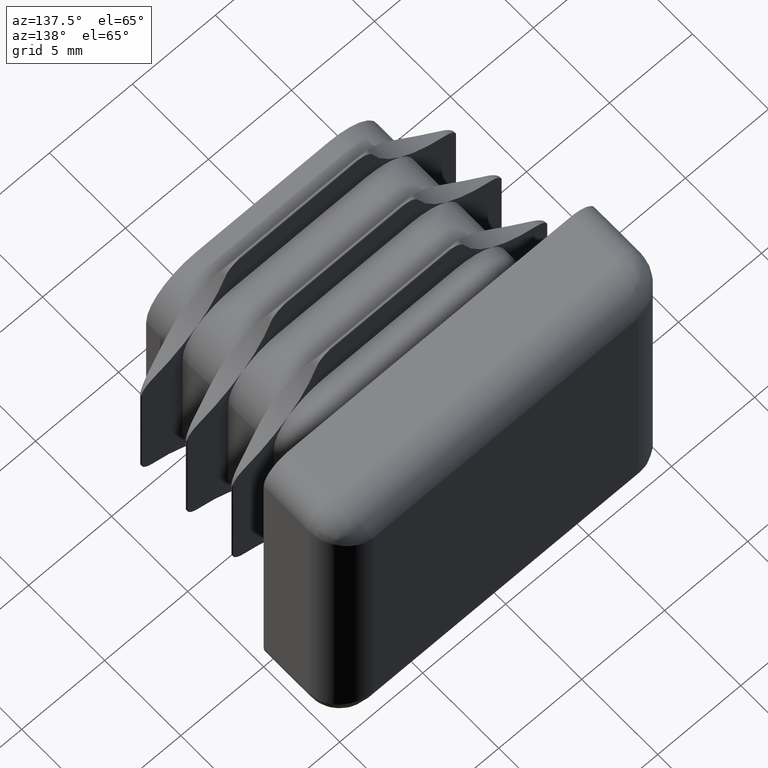
[diagram: clean part render]
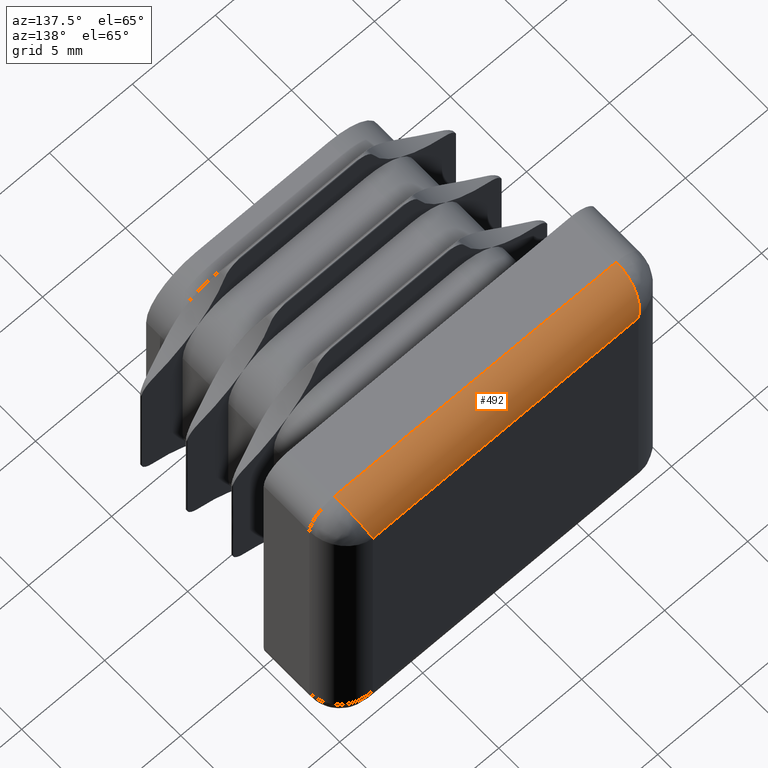
[diagram: same view with one face highlighted and labeled with its STEP entity id]
A machine part, auxiliary view. The second image highlights one B-rep face of the part: STEP entity #492.
In plain terms, the highlighted cylindrical surface (partial cylindrical patch) has radius 2 mm, axis along (-1, 0, 0).
Its self-contained STEP definition (entity closure, byte-faithful):
#492 = ADVANCED_FACE ( 'NONE', ( #2830 ), #593, .T. ) ;
#593 = CYLINDRICAL_SURFACE ( 'NONE', #14210, 2.000000000000000000 ) ;
#776 = ORIENTED_EDGE ( 'NONE', *, *, #14708, .T. ) ;
#827 = VECTOR ( 'NONE', #15170, 1000.000000000000000 ) ;
#2830 = FACE_OUTER_BOUND ( 'NONE', #6602, .T. ) ;
#4710 = CARTESIAN_POINT ( 'NONE',  ( 8.500000000000021316, 3.000000000000000000, 10.00000000000000888 ) ) ;
#4733 = EDGE_CURVE ( 'NONE', #7425, #16272, #10980, .T. ) ;
#5092 = CARTESIAN_POINT ( 'NONE',  ( 8.292893218813475187, 5.000000000000000888, 9.171572875253819035 ) ) ;
#6602 = EDGE_LOOP ( 'NONE', ( #776, #8712, #15617, #8612 ) ) ;
#6664 = CARTESIAN_POINT ( 'NONE',  ( 8.500000000000023093, 4.171572875253810153, 10.00000000000000888 ) ) ;
#6882 = EDGE_CURVE ( 'NONE', #16272, #17044, #16261, .T. ) ;
#7425 = VERTEX_POINT ( 'NONE', #12372 ) ;
#7678 = CARTESIAN_POINT ( 'NONE',  ( -8.292893218813446765, 5.000000000000000000, 9.171572875253819035 ) ) ;
#8250 = CARTESIAN_POINT ( 'NONE',  ( 8.500000000000021316, 3.000000000000000000, 10.00000000000000888 ) ) ;
#8612 = ORIENTED_EDGE ( 'NONE', *, *, #4733, .F. ) ;
#8712 = ORIENTED_EDGE ( 'NONE', *, *, #9503, .F. ) ;
#9111 = CARTESIAN_POINT ( 'NONE',  ( -8.499999999999994671, 3.000000000000000000, 10.00000000000000888 ) ) ;
#9503 = EDGE_CURVE ( 'NONE', #17044, #19511, #17144, .T. ) ;
#10980 = LINE ( 'NONE', #13511, #827 ) ;
#11719 = DIRECTION ( 'NONE',  ( 0.000000000000000000, 0.000000000000000000, 1.000000000000000000 ) ) ;
#11781 = CARTESIAN_POINT ( 'NONE',  ( 0.000000000000000000, 3.000000000000000000, 8.000000000000008882 ) ) ;
#12372 = CARTESIAN_POINT ( 'NONE',  ( -7.999999999999994671, 5.000000000000000000, 8.000000000000008882 ) ) ;
#12959 = CARTESIAN_POINT ( 'NONE',  ( 8.000000000000021316, 5.000000000000000000, 8.000000000000008882 ) ) ;
#13228 =( BOUNDED_CURVE ( )  B_SPLINE_CURVE ( 3, ( #13971, #7678, #20152, #9111 ),
 .UNSPECIFIED., .F., .F. ) 
 B_SPLINE_CURVE_WITH_KNOTS ( ( 4, 4 ),
 ( 4.712388980384689674, 6.283185307179586232 ),
 .UNSPECIFIED. ) 
 CURVE ( )  GEOMETRIC_REPRESENTATION_ITEM ( )  RATIONAL_B_SPLINE_CURVE ( ( 1.000000000000000000, 0.8047378541243649375, 0.8047378541243649375, 1.000000000000000000 ) ) 
 REPRESENTATION_ITEM ( '' )  );
#13511 = CARTESIAN_POINT ( 'NONE',  ( 8.500000000000021316, 5.000000000000000000, 8.000000000000008882 ) ) ;
#13646 = VECTOR ( 'NONE', #17469, 1000.000000000000000 ) ;
#13971 = CARTESIAN_POINT ( 'NONE',  ( -7.999999999999994671, 5.000000000000000000, 8.000000000000008882 ) ) ;
#14210 = AXIS2_PLACEMENT_3D ( 'NONE', #11781, #14665, #11719 ) ;
#14665 = DIRECTION ( 'NONE',  ( -1.000000000000000000, 0.000000000000000000, 0.000000000000000000 ) ) ;
#14708 = EDGE_CURVE ( 'NONE', #7425, #19511, #13228, .T. ) ;
#15170 = DIRECTION ( 'NONE',  ( 1.000000000000000000, -0.000000000000000000, 0.000000000000000000 ) ) ;
#15617 = ORIENTED_EDGE ( 'NONE', *, *, #6882, .F. ) ;
#15636 = CARTESIAN_POINT ( 'NONE',  ( -8.499999999999994671, 3.000000000000000000, 10.00000000000000888 ) ) ;
#16261 =( BOUNDED_CURVE ( )  B_SPLINE_CURVE ( 3, ( #12959, #5092, #6664, #8250 ),
 .UNSPECIFIED., .F., .F. ) 
 B_SPLINE_CURVE_WITH_KNOTS ( ( 4, 4 ),
 ( 4.712388980384689674, 6.283185307179586232 ),
 .UNSPECIFIED. ) 
 CURVE ( )  GEOMETRIC_REPRESENTATION_ITEM ( )  RATIONAL_B_SPLINE_CURVE ( ( 1.000000000000000000, 0.8047378541243649375, 0.8047378541243649375, 1.000000000000000000 ) ) 
 REPRESENTATION_ITEM ( '' )  );
#16272 = VERTEX_POINT ( 'NONE', #17486 ) ;
#17044 = VERTEX_POINT ( 'NONE', #4710 ) ;
#17144 = LINE ( 'NONE', #17533, #13646 ) ;
#17469 = DIRECTION ( 'NONE',  ( -1.000000000000000000, -0.000000000000000000, -0.000000000000000000 ) ) ;
#17486 = CARTESIAN_POINT ( 'NONE',  ( 8.000000000000021316, 5.000000000000000000, 8.000000000000008882 ) ) ;
#17533 = CARTESIAN_POINT ( 'NONE',  ( -8.499999999999994671, 3.000000000000000000, 10.00000000000000888 ) ) ;
#19511 = VERTEX_POINT ( 'NONE', #15636 ) ;
#20152 = CARTESIAN_POINT ( 'NONE',  ( -8.499999999999994671, 4.171572875253810153, 10.00000000000000888 ) ) ;